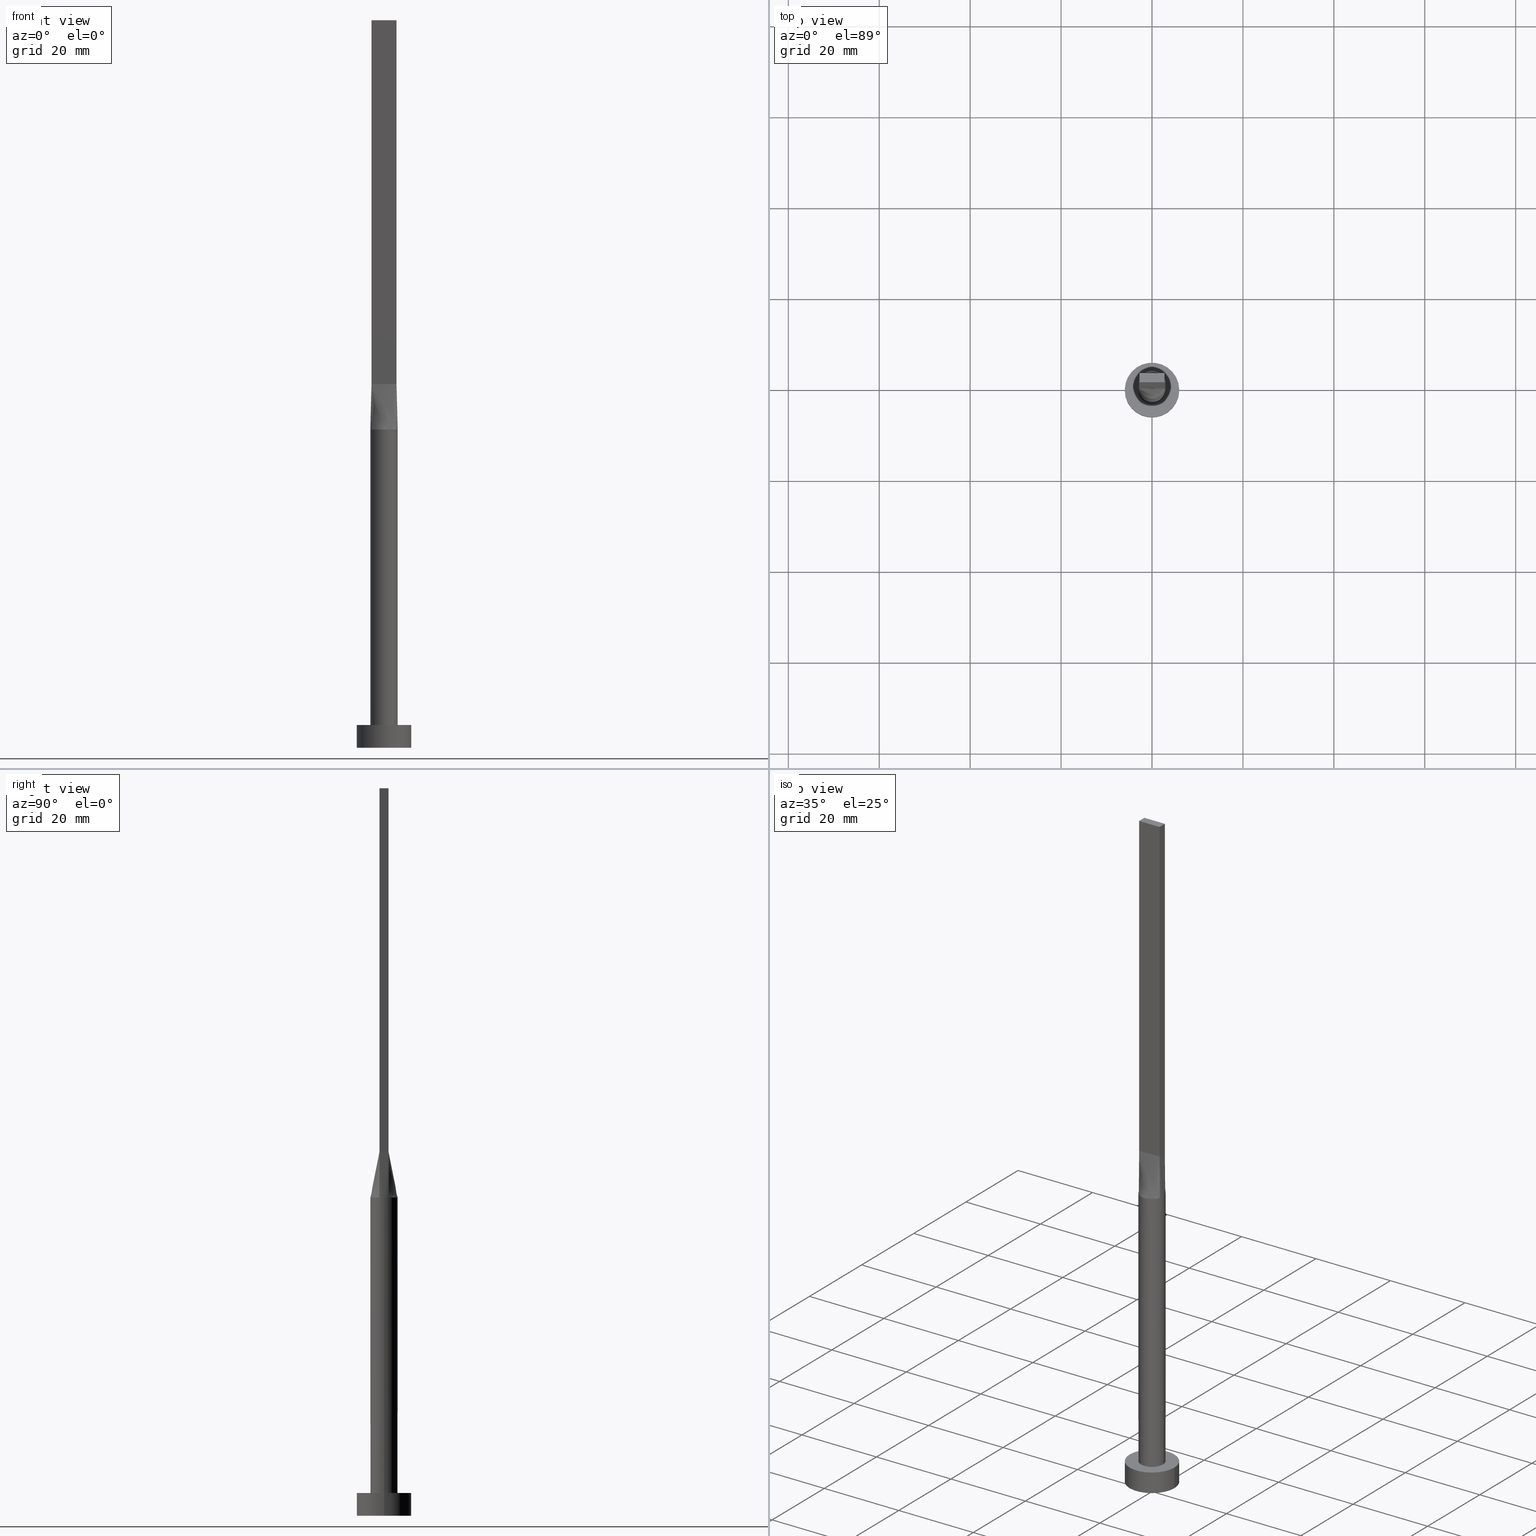
[diagram: canonical four-view strip — front | top / right | iso, engineering-drawing reading convention]
A machine part, canonical four-view strip (front | top / right | iso — engineering-drawing reading convention). The complete STEP part file that produces these views, byte-faithful:
ISO-10303-21;
HEADER;
FILE_DESCRIPTION (( 'STEP AP203' ),
    '1' );
FILE_NAME ('1744.STEP',
    '2023-02-13T10:48:44',
    ( '' ),
    ( '' ),
    'SwSTEP 2.0',
    'SolidWorks 2019',
    '' );
FILE_SCHEMA (( 'CONFIG_CONTROL_DESIGN' ));
ENDSEC;

DATA;
#1 = PLANE ( 'NONE',  #320 ) ;
#2 = EDGE_CURVE ( 'NONE', #350, #322, #468, .T. ) ;
#3 = CC_DESIGN_APPROVAL ( #532, ( #118 ) ) ;
#4 = CARTESIAN_POINT ( 'NONE',  ( -1.627925520694712747, 2.539128397820341831, 70.00000000000000000 ) ) ;
#5 = PERSON_AND_ORGANIZATION ( #560, #45 ) ;
#6 = EDGE_LOOP ( 'NONE', ( #13, #372, #408, #58, #325, #424 ) ) ;
#7 = CARTESIAN_POINT ( 'NONE',  ( 2.750000000000000000, -0.9999999999999997780, 160.0000000000000000 ) ) ;
#8 =( NAMED_UNIT ( * ) PLANE_ANGLE_UNIT ( ) SI_UNIT ( $, .RADIAN. ) );
#9 = VERTEX_POINT ( 'NONE', #536 ) ;
#10 = EDGE_CURVE ( 'NONE', #465, #300, #511, .T. ) ;
#11 = CARTESIAN_POINT ( 'NONE',  ( 1.338960936578149630, 2.706038443291637563, 70.00000000000000000 ) ) ;
#12 = CARTESIAN_POINT ( 'NONE',  ( 0.000000000000000000, 0.000000000000000000, 70.00000000000000000 ) ) ;
#13 = ORIENTED_EDGE ( 'NONE', *, *, #501, .F. ) ;
#14 = CARTESIAN_POINT ( 'NONE',  ( 0.9166666666666677399, 1.000000000000000000, 79.99999999999998579 ) ) ;
#15 = EDGE_LOOP ( 'NONE', ( #105, #198, #545, #31 ) ) ;
#16 = ORIENTED_EDGE ( 'NONE', *, *, #57, .F. ) ;
#17 = EDGE_CURVE ( 'NONE', #9, #181, #299, .T. ) ;
#18 = CARTESIAN_POINT ( 'NONE',  ( 3.000000000000000444, -0.3523499553598126721, 69.99999999999998579 ) ) ;
#19 = LINE ( 'NONE', #184, #312 ) ;
#20 = LINE ( 'NONE', #513, #576 ) ;
#21 = CARTESIAN_POINT ( 'NONE',  ( 2.749999999999999556, 0.3333333333333348136, 79.99999999999998579 ) ) ;
#22 = DIRECTION ( 'NONE',  ( -1.000000000000000000, 0.000000000000000000, 0.000000000000000000 ) ) ;
#23 = CARTESIAN_POINT ( 'NONE',  ( 6.000000000000000888, 7.347880794884120722E-16, 0.000000000000000000 ) ) ;
#24 = EDGE_CURVE ( 'NONE', #462, #72, #88, .T. ) ;
#25 = ORIENTED_EDGE ( 'NONE', *, *, #143, .F. ) ;
#26 = CARTESIAN_POINT ( 'NONE',  ( -2.749999999999999556, 0.6666666666666667407, 79.99999999999998579 ) ) ;
#27 = CARTESIAN_POINT ( 'NONE',  ( -6.000000000000000888, 0.000000000000000000, 5.000000000000000000 ) ) ;
#28 = DIRECTION ( 'NONE',  ( 1.000000000000000000, 0.000000000000000000, 0.000000000000000000 ) ) ;
#29 = CARTESIAN_POINT ( 'NONE',  ( 0.000000000000000000, 0.000000000000000000, 5.000000000000000000 ) ) ;
#30 = CARTESIAN_POINT ( 'NONE',  ( -1.604166666666666963, -0.9999999999999993339, 79.99999999999998579 ) ) ;
#31 = ORIENTED_EDGE ( 'NONE', *, *, #126, .T. ) ;
#32 = ADVANCED_FACE ( 'NONE', ( #259 ), #253, .T. ) ;
#33 = CARTESIAN_POINT ( 'NONE',  ( 0.000000000000000000, 0.000000000000000000, 5.000000000000000000 ) ) ;
#34 = PLANE ( 'NONE',  #264 ) ;
#35 = CARTESIAN_POINT ( 'NONE',  ( -2.625980160873452540, -1.476334031700885507, 70.00000000000000000 ) ) ;
#36 = DIRECTION ( 'NONE',  ( 0.000000000000000000, 0.000000000000000000, 1.000000000000000000 ) ) ;
#37 = DIRECTION ( 'NONE',  ( 1.000000000000000000, 0.000000000000000000, 0.000000000000000000 ) ) ;
#38 = AXIS2_PLACEMENT_3D ( 'NONE', #567, #383, #389 ) ;
#39 = CARTESIAN_POINT ( 'NONE',  ( 2.749999999999999556, 1.000000000000000000, 160.0000000000000000 ) ) ;
#40 = CARTESIAN_POINT ( 'NONE',  ( 2.625980160873452984, -1.476334031700886618, 70.00000000000001421 ) ) ;
#41 = CARTESIAN_POINT ( 'NONE',  ( 2.520833333333333037, 1.000000000000000000, 80.00000000000000000 ) ) ;
#42 = B_SPLINE_SURFACE_WITH_KNOTS ( 'NONE', 3, 1, ( 
 ( #119, #429 ),
 ( #201, #26 ),
 ( #233, #522 ),
 ( #329, #287 ),
 ( #377, #473 ),
 ( #384, #291 ) ),
 .UNSPECIFIED., .F., .F., .F.,
 ( 4, 2, 4 ),
 ( 2, 2 ),
 ( 0.000000000000000000, 0.5000000000000000000, 1.000000000000000000 ),
 ( 0.000000000000000000, 1.000000000000000000 ),
 .UNSPECIFIED. ) ;
#43 = CARTESIAN_POINT ( 'NONE',  ( 2.739088299662392867, 1.246032108968142538, 70.00000000000002842 ) ) ;
#44 = CIRCLE ( 'NONE', #346, 6.000000000000000888 ) ;
#45 = ORGANIZATION ( 'NEUR�EN�', 'NEUR�EN�', '' ) ;
#46 = CARTESIAN_POINT ( 'NONE',  ( -0.3502136323054376721, 2.999999999999999112, 70.00000000000001421 ) ) ;
#47 = CARTESIAN_POINT ( 'NONE',  ( 0.000000000000000000, 0.000000000000000000, 5.000000000000000000 ) ) ;
#48 = ADVANCED_FACE ( 'NONE', ( #484 ), #1, .F. ) ;
#49 = VERTEX_POINT ( 'NONE', #79 ) ;
#50 = ORIENTED_EDGE ( 'NONE', *, *, #57, .T. ) ;
#51 = AXIS2_PLACEMENT_3D ( 'NONE', #450, #220, #83 ) ;
#52 = ORIENTED_EDGE ( 'NONE', *, *, #428, .T. ) ;
#53 = CARTESIAN_POINT ( 'NONE',  ( 1.627925520694712080, 2.539128397820340943, 69.99999999999998579 ) ) ;
#54 = CARTESIAN_POINT ( 'NONE',  ( 2.819380270465311700, 1.025229189260113083, 70.00000000000000000 ) ) ;
#55 = ORIENTED_EDGE ( 'NONE', *, *, #195, .F. ) ;
#57 = EDGE_CURVE ( 'NONE', #322, #462, #249, .T. ) ;
#56 = CARTESIAN_POINT ( 'NONE',  ( 3.000000000000000444, 7.514166843208536743E-18, 70.00000000000000000 ) ) ;
#58 = ORIENTED_EDGE ( 'NONE', *, *, #385, .F. ) ;
#59 = CC_DESIGN_PERSON_AND_ORGANIZATION_ASSIGNMENT ( #339, #515, ( #164 ) ) ;
#60 = LOCAL_TIME ( 11, 48, 44.00000000000000000, #152 ) ;
#61 = FACE_OUTER_BOUND ( 'NONE', #97, .T. ) ;
#62 = ORIENTED_EDGE ( 'NONE', *, *, #483, .F. ) ;
#63 = CARTESIAN_POINT ( 'NONE',  ( -2.749999999999999556, 1.000000000000000000, 80.00000000000000000 ) ) ;
#64 = EDGE_CURVE ( 'NONE', #49, #181, #392, .T. ) ;
#65 = CARTESIAN_POINT ( 'NONE',  ( -0.6998073349918614294, -2.936959335800558346, 70.00000000000001421 ) ) ;
#66 = CLOSED_SHELL ( 'NONE', ( #32, #455, #370, #296, #131, #168, #571, #417, #537, #508, #411, #398, #316, #48, #563 ) ) ;
#67 = CARTESIAN_POINT ( 'NONE',  ( 0.000000000000000000, 0.000000000000000000, 70.00000000000000000 ) ) ;
#68 = DIRECTION ( 'NONE',  ( 7.885106708985487801E-17, 1.000000000000000000, -0.000000000000000000 ) ) ;
#69 = CARTESIAN_POINT ( 'NONE',  ( -2.739088299662392423, 1.246032108968142316, 70.00000000000000000 ) ) ;
#70 = B_SPLINE_CURVE_WITH_KNOTS ( 'NONE', 3,
 ( #406, #43, #496, #535, #360, #445, #489, #252, #441, #129, #297, #396, #4, #349, #538, #130, #298, #493 ),
 .UNSPECIFIED., .F., .F.,
 ( 4, 2, 2, 2, 2, 2, 2, 2, 4 ),
 ( 0.000000000000000000, 0.1249999999999998890, 0.2499999999999997780, 0.3749999999999997780, 0.4999999999999997780, 0.6249999999999997780, 0.7499999999999997780, 0.8749999999999998890, 1.000000000000000000 ),
 .UNSPECIFIED. ) ;
#71 = CARTESIAN_POINT ( 'NONE',  ( -2.819413526938078007, -1.025241406939941369, 70.00000000000000000 ) ) ;
#72 = VERTEX_POINT ( 'NONE', #369 ) ;
#73 = CARTESIAN_POINT ( 'NONE',  ( -2.115507543051069916, 2.149870311632977593, 69.99999999999998579 ) ) ;
#74 = CARTESIAN_POINT ( 'NONE',  ( 2.819380270465311700, 1.025229189260112639, 70.00000000000000000 ) ) ;
#75 = ORIENTED_EDGE ( 'NONE', *, *, #439, .F. ) ;
#76 = FACE_OUTER_BOUND ( 'NONE', #95, .T. ) ;
#77 = EDGE_CURVE ( 'NONE', #179, #318, #427, .T. ) ;
#78 = VECTOR ( 'NONE', #577, 1000.000000000000000 ) ;
#79 = CARTESIAN_POINT ( 'NONE',  ( -2.749999999999999556, 1.000000000000000000, 160.0000000000000000 ) ) ;
#80 = DIRECTION ( 'NONE',  ( -0.000000000000000000, -0.000000000000000000, -1.000000000000000000 ) ) ;
#81 = APPROVAL_PERSON_ORGANIZATION ( #416, #307, #186 ) ;
#82 = CC_DESIGN_PERSON_AND_ORGANIZATION_ASSIGNMENT ( #230, #557, ( #169 ) ) ;
#83 = DIRECTION ( 'NONE',  ( 1.000000000000000000, 0.000000000000000000, 0.000000000000000000 ) ) ;
#84 = CARTESIAN_POINT ( 'NONE',  ( 2.314486317179579977, 1.928337902455807384, 70.00000000000002842 ) ) ;
#85 = CYLINDRICAL_SURFACE ( 'NONE', #146, 6.000000000000000888 ) ;
#87 = LINE ( 'NONE', #257, #116 ) ;
#86 = SHAPE_DEFINITION_REPRESENTATION ( #163, #580 ) ;
#88 = LINE ( 'NONE', #390, #458 ) ;
#89 = EDGE_CURVE ( 'NONE', #313, #453, #481, .T. ) ;
#90 = PERSON_AND_ORGANIZATION_ROLE ( 'creator' ) ;
#91 = DIRECTION ( 'NONE',  ( 1.000000000000000000, 0.000000000000000000, 0.000000000000000000 ) ) ;
#92 = EDGE_LOOP ( 'NONE', ( #521, #405, #271, #50 ) ) ;
#93 = APPROVAL_DATE_TIME ( #265, #293 ) ;
#94 = CARTESIAN_POINT ( 'NONE',  ( 1.833333333333333481, 1.000000000000000000, 79.99999999999998579 ) ) ;
#95 = EDGE_LOOP ( 'NONE', ( #306, #25, #524, #279 ) ) ;
#96 = VECTOR ( 'NONE', #22, 1000.000000000000000 ) ;
#97 = EDGE_LOOP ( 'NONE', ( #568, #141, #529, #382, #276 ) ) ;
#98 = ORIENTED_EDGE ( 'NONE', *, *, #149, .T. ) ;
#99 = CARTESIAN_POINT ( 'NONE',  ( -6.000000000000000888, 0.000000000000000000, 0.000000000000000000 ) ) ;
#100 = MECHANICAL_CONTEXT ( 'NONE', #185, 'mechanical' ) ;
#101 = CARTESIAN_POINT ( 'NONE',  ( 2.936168591633194769, -0.7040613060484341990, 70.00000000000001421 ) ) ;
#102 = ORIENTED_EDGE ( 'NONE', *, *, #544, .F. ) ;
#103 = CARTESIAN_POINT ( 'NONE',  ( -2.749999999999999556, 1.000000000000000000, 80.00000000000000000 ) ) ;
#104 = CARTESIAN_POINT ( 'NONE',  ( 3.000000000000000444, 3.673940397442060361E-16, 5.000000000000000000 ) ) ;
#105 = ORIENTED_EDGE ( 'NONE', *, *, #544, .T. ) ;
#106 = DIRECTION ( 'NONE',  ( -0.000000000000000000, -0.000000000000000000, -1.000000000000000000 ) ) ;
#107 = EDGE_CURVE ( 'NONE', #300, #72, #566, .T. ) ;
#108 = LINE ( 'NONE', #278, #466 ) ;
#109 = LOCAL_TIME ( 11, 48, 44.00000000000000000, #267 ) ;
#110 = ORIENTED_EDGE ( 'NONE', *, *, #255, .T. ) ;
#111 = DIRECTION ( 'NONE',  ( -0.000000000000000000, -0.000000000000000000, -1.000000000000000000 ) ) ;
#112 = ORIENTED_EDGE ( 'NONE', *, *, #10, .F. ) ;
#113 = DATE_AND_TIME ( #194, #60 ) ;
#114 = ORIENTED_EDGE ( 'NONE', *, *, #195, .T. ) ;
#115 = APPROVAL_STATUS ( 'not_yet_approved' ) ;
#116 = VECTOR ( 'NONE', #217, 1000.000000000000000 ) ;
#117 = ORIENTED_EDGE ( 'NONE', *, *, #290, .F. ) ;
#118 = PRODUCT_DEFINITION_FORMATION_WITH_SPECIFIED_SOURCE ( 'LIBOVOLN�', '', #169, .NOT_KNOWN. ) ;
#119 = CARTESIAN_POINT ( 'NONE',  ( -2.819380270465311700, 1.025229189260112861, 70.00000000000000000 ) ) ;
#120 = CARTESIAN_POINT ( 'NONE',  ( -0.2291666666666671015, -0.9999999999999993339, 80.00000000000000000 ) ) ;
#121 = CARTESIAN_POINT ( 'NONE',  ( 2.819430526142641558, -1.025247683279450817, 70.00000000000000000 ) ) ;
#122 = VECTOR ( 'NONE', #334, 1000.000000000000114 ) ;
#123 =( NAMED_UNIT ( * ) SI_UNIT ( $, .STERADIAN. ) SOLID_ANGLE_UNIT ( ) );
#124 = DIRECTION ( 'NONE',  ( 1.000000000000000000, 0.000000000000000000, 0.000000000000000000 ) ) ;
#125 = MANIFOLD_SOLID_BREP ( 'P�idat vysunut�m5', #66 ) ;
#126 = EDGE_CURVE ( 'NONE', #272, #72, #423, .T. ) ;
#127 = AXIS2_PLACEMENT_3D ( 'NONE', #67, #285, #238 ) ;
#128 = CALENDAR_DATE ( 2023, 13, 2 ) ;
#129 = CARTESIAN_POINT ( 'NONE',  ( -0.3502136323054376721, 2.999999999999999112, 70.00000000000001421 ) ) ;
#130 = CARTESIAN_POINT ( 'NONE',  ( -2.625980160873452096, 1.476334031700886396, 69.99999999999998579 ) ) ;
#131 = ADVANCED_FACE ( 'NONE', ( #475 ), #34, .F. ) ;
#132 = ORIENTED_EDGE ( 'NONE', *, *, #17, .T. ) ;
#133 = CARTESIAN_POINT ( 'NONE',  ( 1.833333333333333037, -0.9999999999999995559, 79.99999999999998579 ) ) ;
#135 = CARTESIAN_POINT ( 'NONE',  ( 6.000000000000000888, 7.347880794884120722E-16, 5.000000000000000000 ) ) ;
#134 = COORDINATED_UNIVERSAL_TIME_OFFSET ( 1, 0, .AHEAD. ) ;
#136 = CARTESIAN_POINT ( 'NONE',  ( 2.750000000000000000, -0.9999999999999997780, 80.00000000000000000 ) ) ;
#137 = AXIS2_PLACEMENT_3D ( 'NONE', #12, #352, #175 ) ;
#138 = VERTEX_POINT ( 'NONE', #71 ) ;
#139 = DIRECTION ( 'NONE',  ( -2.168404344971009854E-16, -1.000000000000000000, 0.000000000000000000 ) ) ;
#140 = ORIENTED_EDGE ( 'NONE', *, *, #2, .T. ) ;
#141 = ORIENTED_EDGE ( 'NONE', *, *, #10, .T. ) ;
#142 = CARTESIAN_POINT ( 'NONE',  ( 3.000000000000000444, 3.673940397442060361E-16, 70.00000000000000000 ) ) ;
#143 = EDGE_CURVE ( 'NONE', #350, #507, #20, .T. ) ;
#144 = DIRECTION ( 'NONE',  ( -1.000000000000000000, 7.885106708985487801E-17, 0.000000000000000000 ) ) ;
#145 = VERTEX_POINT ( 'NONE', #23 ) ;
#146 = AXIS2_PLACEMENT_3D ( 'NONE', #442, #80, #446 ) ;
#147 = DIRECTION ( 'NONE',  ( 0.000000000000000000, -1.000000000000000000, 0.000000000000000000 ) ) ;
#148 = ORIENTED_EDGE ( 'NONE', *, *, #2, .F. ) ;
#149 = EDGE_CURVE ( 'NONE', #49, #350, #108, .T. ) ;
#150 = LINE ( 'NONE', #321, #166 ) ;
#151 = CARTESIAN_POINT ( 'NONE',  ( 2.784690135232655628, 1.012614594630056430, 75.00000000000001421 ) ) ;
#152 = COORDINATED_UNIVERSAL_TIME_OFFSET ( 1, 0, .AHEAD. ) ;
#153 = CIRCLE ( 'NONE', #137, 3.000000000000000444 ) ;
#154 = FACE_OUTER_BOUND ( 'NONE', #6, .T. ) ;
#155 = CIRCLE ( 'NONE', #303, 6.000000000000000888 ) ;
#156 = DIRECTION ( 'NONE',  ( 0.000000000000000000, -0.000000000000000000, -1.000000000000000000 ) ) ;
#157 = CARTESIAN_POINT ( 'NONE',  ( -2.750000000000000000, -0.9999999999999993339, 80.00000000000000000 ) ) ;
#158 = APPROVAL_ROLE ( '' ) ;
#159 = FACE_OUTER_BOUND ( 'NONE', #477, .T. ) ;
#160 = CARTESIAN_POINT ( 'NONE',  ( 0.3502136323054372835, -3.000000000000000444, 70.00000000000001421 ) ) ;
#161 = ORIENTED_EDGE ( 'NONE', *, *, #77, .F. ) ;
#162 = DIRECTION ( 'NONE',  ( -1.000000000000000000, 0.000000000000000000, 0.000000000000000000 ) ) ;
#163 = PRODUCT_DEFINITION_SHAPE ( 'NONE', 'NONE',  #164 ) ;
#164 = PRODUCT_DEFINITION ( 'NEZN�M�', '', #118, #553 ) ;
#165 = EDGE_LOOP ( 'NONE', ( #173, #132, #102, #222 ) ) ;
#166 = VECTOR ( 'NONE', #106, 1000.000000000000000 ) ;
#167 = CARTESIAN_POINT ( 'NONE',  ( -2.739088299662391979, -1.246032108968140983, 70.00000000000001421 ) ) ;
#168 = ADVANCED_FACE ( 'NONE', ( #154 ), #379, .T. ) ;
#169 = PRODUCT ( '1744', '1744', '', ( #100 ) ) ;
#170 = AXIS2_PLACEMENT_3D ( 'NONE', #376, #548, #283 ) ;
#171 = CARTESIAN_POINT ( 'NONE',  ( -2.749999999999999556, 1.000000000000000000, 160.0000000000000000 ) ) ;
#172 = CARTESIAN_POINT ( 'NONE',  ( 2.520833333333333037, -0.9999999999999995559, 79.99999999999998579 ) ) ;
#173 = ORIENTED_EDGE ( 'NONE', *, *, #221, .T. ) ;
#174 = CARTESIAN_POINT ( 'NONE',  ( 2.750000000000000000, -0.9999999999999997780, 80.00000000000000000 ) ) ;
#175 = DIRECTION ( 'NONE',  ( 1.000000000000000000, 0.000000000000000000, 0.000000000000000000 ) ) ;
#176 = CARTESIAN_POINT ( 'NONE',  ( 0.2291666666666671015, 1.000000000000000000, 79.99999999999998579 ) ) ;
#177 = CC_DESIGN_APPROVAL ( #307, ( #164 ) ) ;
#178 = ORIENTED_EDGE ( 'NONE', *, *, #501, .T. ) ;
#179 = VERTEX_POINT ( 'NONE', #27 ) ;
#180 = EDGE_CURVE ( 'NONE', #9, #456, #153, .T. ) ;
#181 = VERTEX_POINT ( 'NONE', #347 ) ;
#182 = CARTESIAN_POINT ( 'NONE',  ( 2.750000000000000000, -0.3333333333333318160, 79.99999999999998579 ) ) ;
#183 = EDGE_LOOP ( 'NONE', ( #480, #519, #304, #500 ) ) ;
#184 = CARTESIAN_POINT ( 'NONE',  ( 2.784690135232656072, -1.012614594630056208, 75.00000000000001421 ) ) ;
#185 = APPLICATION_CONTEXT ( 'configuration controlled 3d designs of mechanical parts and assemblies' ) ;
#186 = APPROVAL_ROLE ( '' ) ;
#187 = CARTESIAN_POINT ( 'NONE',  ( 2.936168591633195657, 0.7040613060484338659, 70.00000000000000000 ) ) ;
#188 = DATE_AND_TIME ( #437, #192 ) ;
#189 = AXIS2_PLACEMENT_3D ( 'NONE', #342, #351, #124 ) ;
#190 = AXIS2_PLACEMENT_3D ( 'NONE', #212, #447, #341 ) ;
#191 = ORIENTED_EDGE ( 'NONE', *, *, #89, .T. ) ;
#192 = LOCAL_TIME ( 11, 48, 44.00000000000000000, #338 ) ;
#193 = FACE_OUTER_BOUND ( 'NONE', #514, .T. ) ;
#194 = CALENDAR_DATE ( 2023, 13, 2 ) ;
#195 = EDGE_CURVE ( 'NONE', #432, #145, #395, .T. ) ;
#196 = DIRECTION ( 'NONE',  ( 1.000000000000000000, 0.000000000000000000, 0.000000000000000000 ) ) ;
#197 = CARTESIAN_POINT ( 'NONE',  ( -1.833333333333333481, -0.9999999999999993339, 79.99999999999998579 ) ) ;
#198 = ORIENTED_EDGE ( 'NONE', *, *, #64, .F. ) ;
#199 = PERSON_AND_ORGANIZATION ( #560, #45 ) ;
#200 = FACE_OUTER_BOUND ( 'NONE', #543, .T. ) ;
#201 = CARTESIAN_POINT ( 'NONE',  ( -2.936168591633194769, 0.7040613060484341990, 70.00000000000001421 ) ) ;
#202 = CARTESIAN_POINT ( 'NONE',  ( -2.115507543051069472, -2.149870311632975373, 70.00000000000000000 ) ) ;
#203 = B_SPLINE_SURFACE_WITH_KNOTS ( 'NONE', 3, 1, ( 
 ( #242, #157 ),
 ( #167, #467 ),
 ( #35, #464 ),
 ( #476, #197 ),
 ( #202, #30 ),
 ( #387, #336 ),
 ( #380, #564 ),
 ( #65, #207 ),
 ( #575, #120 ),
 ( #160, #340 ),
 ( #479, #328 ),
 ( #520, #246 ),
 ( #356, #348 ),
 ( #353, #258 ),
 ( #491, #133 ),
 ( #40, #539 ),
 ( #494, #172 ),
 ( #497, #136 ) ),
 .UNSPECIFIED., .F., .F., .F.,
 ( 4, 2, 2, 2, 2, 2, 2, 2, 4 ),
 ( 2, 2 ),
 ( 0.000000000000000000, 0.1250000000000000000, 0.2500000000000000000, 0.3750000000000000000, 0.5000000000000000000, 0.6250000000000000000, 0.7500000000000000000, 0.8750000000000000000, 1.000000000000000000 ),
 ( 0.000000000000000000, 1.000000000000000000 ),
 .UNSPECIFIED. ) ;
#204 = ORIENTED_EDGE ( 'NONE', *, *, #385, .T. ) ;
#205 = DIRECTION ( 'NONE',  ( 1.000000000000000000, -2.168404344971010101E-16, 0.000000000000000000 ) ) ;
#206 = CARTESIAN_POINT ( 'NONE',  ( 6.000000000000000888, 7.347880794884120722E-16, 5.000000000000000000 ) ) ;
#207 = CARTESIAN_POINT ( 'NONE',  ( -0.4583333333333337589, -0.9999999999999993339, 79.99999999999998579 ) ) ;
#208 = AXIS2_PLACEMENT_3D ( 'NONE', #47, #391, #487 ) ;
#209 = CARTESIAN_POINT ( 'NONE',  ( -2.784690135232655628, 1.012614594630056430, 75.00000000000001421 ) ) ;
#210 = LINE ( 'NONE', #573, #277 ) ;
#211 = DIRECTION ( 'NONE',  ( -0.000000000000000000, -0.000000000000000000, -1.000000000000000000 ) ) ;
#212 = CARTESIAN_POINT ( 'NONE',  ( 0.000000000000000000, 0.000000000000000000, 70.00000000000000000 ) ) ;
#213 = B_SPLINE_SURFACE_WITH_KNOTS ( 'NONE', 3, 1, ( 
 ( #232, #509 ),
 ( #101, #227 ),
 ( #18, #182 ),
 ( #419, #21 ),
 ( #187, #555 ),
 ( #74, #386 ) ),
 .UNSPECIFIED., .F., .F., .F.,
 ( 4, 2, 4 ),
 ( 2, 2 ),
 ( 0.000000000000000000, 0.5000000000000000000, 1.000000000000000000 ),
 ( 0.000000000000000000, 1.000000000000000000 ),
 .UNSPECIFIED. ) ;
#214 = PERSON_AND_ORGANIZATION ( #560, #45 ) ;
#215 = VECTOR ( 'NONE', #431, 1000.000000000000000 ) ;
#216 = EDGE_CURVE ( 'NONE', #138, #359, #486, .T. ) ;
#217 = DIRECTION ( 'NONE',  ( 1.000000000000000000, -7.885106708985487801E-17, 0.000000000000000000 ) ) ;
#218 = DIRECTION ( 'NONE',  ( -2.168404344971008868E-16, 1.000000000000000000, -0.000000000000000000 ) ) ;
#219 = DATE_AND_TIME ( #128, #438 ) ;
#220 = DIRECTION ( 'NONE',  ( 0.000000000000000000, 0.000000000000000000, 1.000000000000000000 ) ) ;
#221 = EDGE_CURVE ( 'NONE', #300, #9, #70, .T. ) ;
#222 = ORIENTED_EDGE ( 'NONE', *, *, #107, .F. ) ;
#223 = CARTESIAN_POINT ( 'NONE',  ( -2.750000000000000000, -0.9999999999999993339, 80.00000000000000000 ) ) ;
#224 = CARTESIAN_POINT ( 'NONE',  ( 1.604166666666667185, 1.000000000000000000, 79.99999999999998579 ) ) ;
#225 = DIRECTION ( 'NONE',  ( 2.168404344971010101E-16, 1.000000000000000000, 0.000000000000000000 ) ) ;
#226 = EDGE_CURVE ( 'NONE', #507, #462, #87, .T. ) ;
#227 = CARTESIAN_POINT ( 'NONE',  ( 2.750000000000000000, -0.6666666666666656305, 79.99999999999998579 ) ) ;
#228 = CARTESIAN_POINT ( 'NONE',  ( 2.749999999999999556, 1.000000000000000000, 80.00000000000000000 ) ) ;
#229 = CARTESIAN_POINT ( 'NONE',  ( -2.750000000000000000, -0.9999999999999993339, 160.0000000000000000 ) ) ;
#230 = PERSON_AND_ORGANIZATION ( #560, #45 ) ;
#231 = DIRECTION ( 'NONE',  ( -0.000000000000000000, -0.000000000000000000, -1.000000000000000000 ) ) ;
#232 = CARTESIAN_POINT ( 'NONE',  ( 2.819380270465311700, -1.025229189260113083, 70.00000000000000000 ) ) ;
#233 = CARTESIAN_POINT ( 'NONE',  ( -3.000000000000000444, 0.3523499553598127276, 69.99999999999998579 ) ) ;
#234 = CARTESIAN_POINT ( 'NONE',  ( -6.000000000000000888, 0.000000000000000000, 5.000000000000000000 ) ) ;
#235 = ORIENTED_EDGE ( 'NONE', *, *, #180, .T. ) ;
#236 = VECTOR ( 'NONE', #211, 1000.000000000000000 ) ;
#237 = CARTESIAN_POINT ( 'NONE',  ( -1.627925520694712747, 2.539128397820341831, 70.00000000000000000 ) ) ;
#238 = DIRECTION ( 'NONE',  ( -1.000000000000000000, 0.000000000000000000, 0.000000000000000000 ) ) ;
#239 = CARTESIAN_POINT ( 'NONE',  ( -2.750000000000000000, -0.9999999999999993339, 160.0000000000000000 ) ) ;
#240 = AXIS2_PLACEMENT_3D ( 'NONE', #229, #68, #144 ) ;
#241 = VECTOR ( 'NONE', #139, 1000.000000000000000 ) ;
#242 = CARTESIAN_POINT ( 'NONE',  ( -2.819380270465311700, -1.025229189260111973, 70.00000000000000000 ) ) ;
#243 = ORIENTED_EDGE ( 'NONE', *, *, #460, .F. ) ;
#244 = PLANE ( 'NONE',  #574 ) ;
#245 = CARTESIAN_POINT ( 'NONE',  ( 0.000000000000000000, 0.000000000000000000, 5.000000000000000000 ) ) ;
#246 = CARTESIAN_POINT ( 'NONE',  ( 0.9166666666666661856, -0.9999999999999995559, 79.99999999999998579 ) ) ;
#247 = CARTESIAN_POINT ( 'NONE',  ( -2.750000000000000000, -0.9999999999999993339, 160.0000000000000000 ) ) ;
#248 = CC_DESIGN_SECURITY_CLASSIFICATION ( #426, ( #118 ) ) ;
#249 = LINE ( 'NONE', #440, #236 ) ;
#250 = PERSON_AND_ORGANIZATION ( #560, #45 ) ;
#251 = DIRECTION ( 'NONE',  ( 1.000000000000000000, 0.000000000000000000, 0.000000000000000000 ) ) ;
#252 = CARTESIAN_POINT ( 'NONE',  ( 0.6998073349918605413, 2.936959335800557014, 69.99999999999997158 ) ) ;
#253 = CYLINDRICAL_SURFACE ( 'NONE', #190, 3.000000000000000444 ) ;
#254 = DIRECTION ( 'NONE',  ( 1.000000000000000000, -7.885106708985487801E-17, 0.000000000000000000 ) ) ;
#255 = EDGE_CURVE ( 'NONE', #322, #272, #400, .T. ) ;
#256 = DIRECTION ( 'NONE',  ( 0.000000000000000000, 0.000000000000000000, 1.000000000000000000 ) ) ;
#257 = CARTESIAN_POINT ( 'NONE',  ( -2.750000000000000000, -0.9999999999999993339, 80.00000000000000000 ) ) ;
#258 = CARTESIAN_POINT ( 'NONE',  ( 1.604166666666666297, -0.9999999999999995559, 79.99999999999998579 ) ) ;
#259 = FACE_OUTER_BOUND ( 'NONE', #268, .T. ) ;
#260 = APPROVAL_STATUS ( 'not_yet_approved' ) ;
#261 =( LENGTH_UNIT ( ) NAMED_UNIT ( * ) SI_UNIT ( .MILLI., .METRE. ) );
#262 = COORDINATED_UNIVERSAL_TIME_OFFSET ( 1, 0, .AHEAD. ) ;
#263 = EDGE_CURVE ( 'NONE', #432, #179, #44, .T. ) ;
#264 = AXIS2_PLACEMENT_3D ( 'NONE', #528, #274, #418 ) ;
#265 = DATE_AND_TIME ( #541, #516 ) ;
#266 = EDGE_LOOP ( 'NONE', ( #75, #310 ) ) ;
#267 = COORDINATED_UNIVERSAL_TIME_OFFSET ( 1, 0, .AHEAD. ) ;
#268 = EDGE_LOOP ( 'NONE', ( #112, #178, #191, #517, #510, #471 ) ) ;
#269 = ORIENTED_EDGE ( 'NONE', *, *, #263, .T. ) ;
#270 = APPROVAL_STATUS ( 'not_yet_approved' ) ;
#271 = ORIENTED_EDGE ( 'NONE', *, *, #255, .F. ) ;
#272 = VERTEX_POINT ( 'NONE', #39 ) ;
#273 = FACE_OUTER_BOUND ( 'NONE', #552, .T. ) ;
#274 = DIRECTION ( 'NONE',  ( 0.000000000000000000, 0.000000000000000000, 1.000000000000000000 ) ) ;
#275 = CARTESIAN_POINT ( 'NONE',  ( 2.749999999999999556, 1.000000000000000000, 160.0000000000000000 ) ) ;
#276 = ORIENTED_EDGE ( 'NONE', *, *, #323, .F. ) ;
#277 = VECTOR ( 'NONE', #531, 1000.000000000000114 ) ;
#278 = CARTESIAN_POINT ( 'NONE',  ( -2.749999999999999556, 1.000000000000000000, 160.0000000000000000 ) ) ;
#279 = ORIENTED_EDGE ( 'NONE', *, *, #64, .T. ) ;
#280 = EDGE_CURVE ( 'NONE', #272, #49, #330, .T. ) ;
#281 = PLANE ( 'NONE',  #38 ) ;
#282 = EDGE_LOOP ( 'NONE', ( #243, #117 ) ) ;
#283 = DIRECTION ( 'NONE',  ( 1.000000000000000000, 0.000000000000000000, -0.000000000000000000 ) ) ;
#284 = PRODUCT_RELATED_PRODUCT_CATEGORY ( 'detail', '', ( #169 ) ) ;
#285 = DIRECTION ( 'NONE',  ( -0.000000000000000000, -0.000000000000000000, -1.000000000000000000 ) ) ;
#286 = ORIENTED_EDGE ( 'NONE', *, *, #143, .T. ) ;
#287 = CARTESIAN_POINT ( 'NONE',  ( -2.750000000000000000, -0.3333333333333328152, 79.99999999999998579 ) ) ;
#288 = CARTESIAN_POINT ( 'NONE',  ( 2.749999999999999556, 1.000000000000000000, 160.0000000000000000 ) ) ;
#289 = AXIS2_PLACEMENT_3D ( 'NONE', #581, #256, #534 ) ;
#290 = EDGE_CURVE ( 'NONE', #145, #318, #365, .T. ) ;
#291 = CARTESIAN_POINT ( 'NONE',  ( -2.750000000000000000, -0.9999999999999991118, 80.00000000000000000 ) ) ;
#292 = DATE_TIME_ROLE ( 'creation_date' ) ;
#293 = APPROVAL ( #260, 'NEUR�EN�' ) ;
#294 = DIRECTION ( 'NONE',  ( 2.168404344971008868E-16, -1.000000000000000000, 0.000000000000000000 ) ) ;
#295 = APPROVAL_DATE_TIME ( #113, #532 ) ;
#296 = ADVANCED_FACE ( 'NONE', ( #551, #273 ), #366, .T. ) ;
#297 = CARTESIAN_POINT ( 'NONE',  ( -0.6998073349918608743, 2.936959335800557014, 70.00000000000000000 ) ) ;
#298 = CARTESIAN_POINT ( 'NONE',  ( -2.739088299662392423, 1.246032108968142316, 70.00000000000000000 ) ) ;
#299 = LINE ( 'NONE', #209, #308 ) ;
#300 = VERTEX_POINT ( 'NONE', #562 ) ;
#301 = CARTESIAN_POINT ( 'NONE',  ( 2.115507543051069916, 2.149870311632976705, 70.00000000000001421 ) ) ;
#302 = PERSON_AND_ORGANIZATION ( #560, #45 ) ;
#303 = AXIS2_PLACEMENT_3D ( 'NONE', #245, #436, #37 ) ;
#304 = ORIENTED_EDGE ( 'NONE', *, *, #226, .F. ) ;
#305 = CARTESIAN_POINT ( 'NONE',  ( -1.338960936578149408, 2.706038443291637119, 69.99999999999998579 ) ) ;
#306 = ORIENTED_EDGE ( 'NONE', *, *, #483, .T. ) ;
#307 = APPROVAL ( #270, 'NEUR�EN�' ) ;
#308 = VECTOR ( 'NONE', #495, 1000.000000000000114 ) ;
#309 = DIRECTION ( 'NONE',  ( 0.000000000000000000, 0.000000000000000000, 1.000000000000000000 ) ) ;
#310 = ORIENTED_EDGE ( 'NONE', *, *, #89, .F. ) ;
#311 = FACE_OUTER_BOUND ( 'NONE', #165, .T. ) ;
#312 = VECTOR ( 'NONE', #368, 1000.000000000000114 ) ;
#313 = VERTEX_POINT ( 'NONE', #104 ) ;
#314 = UNCERTAINTY_MEASURE_WITH_UNIT (LENGTH_MEASURE( 1.000000000000000082E-05 ), #261, 'distance_accuracy_value', 'NONE');
#315 = VECTOR ( 'NONE', #459, 1000.000000000000000 ) ;
#316 = ADVANCED_FACE ( 'NONE', ( #159 ), #326, .F. ) ;
#317 = EDGE_LOOP ( 'NONE', ( #337, #114, #363, #161 ) ) ;
#318 = VERTEX_POINT ( 'NONE', #99 ) ;
#319 = CC_DESIGN_PERSON_AND_ORGANIZATION_ASSIGNMENT ( #302, #354, ( #426 ) ) ;
#320 = AXIS2_PLACEMENT_3D ( 'NONE', #401, #498, #294 ) ;
#321 = CARTESIAN_POINT ( 'NONE',  ( -3.000000000000000444, 0.000000000000000000, 70.00000000000000000 ) ) ;
#322 = VERTEX_POINT ( 'NONE', #415 ) ;
#323 = EDGE_CURVE ( 'NONE', #359, #462, #19, .T. ) ;
#324 = LINE ( 'NONE', #559, #215 ) ;
#325 = ORIENTED_EDGE ( 'NONE', *, *, #345, .T. ) ;
#326 = PLANE ( 'NONE',  #240 ) ;
#327 = APPROVAL_DATE_TIME ( #409, #307 ) ;
#328 = CARTESIAN_POINT ( 'NONE',  ( 0.4583333333333329263, -0.9999999999999995559, 79.99999999999998579 ) ) ;
#329 = CARTESIAN_POINT ( 'NONE',  ( -3.000000000000000444, -0.3523499553598117839, 69.99999999999998579 ) ) ;
#330 = LINE ( 'NONE', #523, #96 ) ;
#331 = DIRECTION ( 'NONE',  ( 0.000000000000000000, 0.000000000000000000, 1.000000000000000000 ) ) ;
#332 = CYLINDRICAL_SURFACE ( 'NONE', #561, 6.000000000000000888 ) ;
#333 = CARTESIAN_POINT ( 'NONE',  ( -2.291666666666665630, 1.000000000000000000, 79.99999999999998579 ) ) ;
#334 = DIRECTION ( 'NONE',  ( -0.006937837988376413349, -0.002522850177591328454, 0.9999727504442450510 ) ) ;
#335 = AXIS2_PLACEMENT_3D ( 'NONE', #344, #490, #533 ) ;
#336 = CARTESIAN_POINT ( 'NONE',  ( -1.145833333333333703, -0.9999999999999993339, 79.99999999999998579 ) ) ;
#337 = ORIENTED_EDGE ( 'NONE', *, *, #263, .F. ) ;
#338 = COORDINATED_UNIVERSAL_TIME_OFFSET ( 1, 0, .AHEAD. ) ;
#339 = PERSON_AND_ORGANIZATION ( #560, #45 ) ;
#340 = CARTESIAN_POINT ( 'NONE',  ( 0.2291666666666662688, -0.9999999999999995559, 79.99999999999998579 ) ) ;
#341 = DIRECTION ( 'NONE',  ( -1.000000000000000000, 0.000000000000000000, 0.000000000000000000 ) ) ;
#342 = CARTESIAN_POINT ( 'NONE',  ( 0.000000000000000000, 0.000000000000000000, 70.00000000000000000 ) ) ;
#343 = SECURITY_CLASSIFICATION_LEVEL ( 'unclassified' ) ;
#344 = CARTESIAN_POINT ( 'NONE',  ( 0.000000000000000000, 0.000000000000000000, 70.00000000000000000 ) ) ;
#345 = EDGE_CURVE ( 'NONE', #456, #453, #150, .T. ) ;
#346 = AXIS2_PLACEMENT_3D ( 'NONE', #33, #527, #435 ) ;
#347 = CARTESIAN_POINT ( 'NONE',  ( -2.749999999999999556, 1.000000000000000000, 80.00000000000000000 ) ) ;
#348 = CARTESIAN_POINT ( 'NONE',  ( 1.145833333333332815, -0.9999999999999995559, 79.99999999999998579 ) ) ;
#349 = CARTESIAN_POINT ( 'NONE',  ( -2.115507543051069916, 2.149870311632977593, 69.99999999999998579 ) ) ;
#350 = VERTEX_POINT ( 'NONE', #247 ) ;
#351 = DIRECTION ( 'NONE',  ( 0.000000000000000000, 0.000000000000000000, 1.000000000000000000 ) ) ;
#352 = DIRECTION ( 'NONE',  ( 0.000000000000000000, 0.000000000000000000, 1.000000000000000000 ) ) ;
#353 = CARTESIAN_POINT ( 'NONE',  ( 2.115507543051068140, -2.149870311632976705, 69.99999999999998579 ) ) ;
#354 = PERSON_AND_ORGANIZATION_ROLE ( 'classification_officer' ) ;
#355 = ORIENTED_EDGE ( 'NONE', *, *, #280, .T. ) ;
#356 = CARTESIAN_POINT ( 'NONE',  ( 1.627925520694712080, -2.539128397820341831, 70.00000000000001421 ) ) ;
#357 = CARTESIAN_POINT ( 'NONE',  ( -0.4583333333333324267, 1.000000000000000000, 79.99999999999998579 ) ) ;
#358 =( GEOMETRIC_REPRESENTATION_CONTEXT ( 3 ) GLOBAL_UNCERTAINTY_ASSIGNED_CONTEXT ( ( #314 ) ) GLOBAL_UNIT_ASSIGNED_CONTEXT ( ( #261, #8, #123 ) ) REPRESENTATION_CONTEXT ( 'NONE', 'WORKASPACE' ) );
#359 = VERTEX_POINT ( 'NONE', #121 ) ;
#360 = CARTESIAN_POINT ( 'NONE',  ( 2.115507543051069916, 2.149870311632976705, 70.00000000000001421 ) ) ;
#361 = CARTESIAN_POINT ( 'NONE',  ( 0.6998073349918605413, 2.936959335800557014, 69.99999999999997158 ) ) ;
#362 = CARTESIAN_POINT ( 'NONE',  ( 0.000000000000000000, 0.000000000000000000, 0.000000000000000000 ) ) ;
#363 = ORIENTED_EDGE ( 'NONE', *, *, #290, .T. ) ;
#364 = EDGE_CURVE ( 'NONE', #507, #138, #210, .T. ) ;
#365 = CIRCLE ( 'NONE', #425, 6.000000000000000888 ) ;
#366 = PLANE ( 'NONE',  #170 ) ;
#367 = AXIS2_PLACEMENT_3D ( 'NONE', #362, #309, #91 ) ;
#368 = DIRECTION ( 'NONE',  ( -0.006937837988376369981, 0.002522850177591328454, 0.9999727504442450510 ) ) ;
#369 = CARTESIAN_POINT ( 'NONE',  ( 2.749999999999999556, 1.000000000000000000, 80.00000000000000000 ) ) ;
#370 = ADVANCED_FACE ( 'NONE', ( #200 ), #332, .T. ) ;
#371 = FACE_OUTER_BOUND ( 'NONE', #15, .T. ) ;
#372 = ORIENTED_EDGE ( 'NONE', *, *, #393, .F. ) ;
#373 = CARTESIAN_POINT ( 'NONE',  ( -2.819380270465311700, 1.025229189260112861, 70.00000000000000000 ) ) ;
#374 = VECTOR ( 'NONE', #430, 1000.000000000000000 ) ;
#375 = ORIENTED_EDGE ( 'NONE', *, *, #77, .T. ) ;
#376 = CARTESIAN_POINT ( 'NONE',  ( 0.000000000000000000, 0.000000000000000000, 5.000000000000000000 ) ) ;
#377 = CARTESIAN_POINT ( 'NONE',  ( -2.936168591633195657, -0.7040613060484334218, 70.00000000000000000 ) ) ;
#378 = CC_DESIGN_APPROVAL ( #293, ( #426 ) ) ;
#379 = CYLINDRICAL_SURFACE ( 'NONE', #127, 3.000000000000000444 ) ;
#380 = CARTESIAN_POINT ( 'NONE',  ( -1.338960936578150518, -2.706038443291638007, 70.00000000000000000 ) ) ;
#381 = ORIENTED_EDGE ( 'NONE', *, *, #460, .T. ) ;
#382 = ORIENTED_EDGE ( 'NONE', *, *, #24, .F. ) ;
#383 = DIRECTION ( 'NONE',  ( 0.000000000000000000, 0.000000000000000000, 1.000000000000000000 ) ) ;
#384 = CARTESIAN_POINT ( 'NONE',  ( -2.819380270465311700, -1.025229189260112195, 70.00000000000000000 ) ) ;
#385 = EDGE_CURVE ( 'NONE', #456, #138, #463, .T. ) ;
#386 = CARTESIAN_POINT ( 'NONE',  ( 2.749999999999999556, 1.000000000000000000, 80.00000000000000000 ) ) ;
#387 = CARTESIAN_POINT ( 'NONE',  ( -1.627925520694712525, -2.539128397820340055, 69.99999999999998579 ) ) ;
#388 = CIRCLE ( 'NONE', #208, 3.000000000000000444 ) ;
#389 = DIRECTION ( 'NONE',  ( 1.000000000000000000, 0.000000000000000000, -0.000000000000000000 ) ) ;
#390 = CARTESIAN_POINT ( 'NONE',  ( 2.749999999999999556, 1.000000000000000000, 80.00000000000000000 ) ) ;
#391 = DIRECTION ( 'NONE',  ( 0.000000000000000000, 0.000000000000000000, 1.000000000000000000 ) ) ;
#392 = LINE ( 'NONE', #171, #78 ) ;
#393 = EDGE_CURVE ( 'NONE', #359, #465, #397, .T. ) ;
#394 = CARTESIAN_POINT ( 'NONE',  ( -3.000000000000000444, -1.370010780910363192E-16, 70.00000000000000000 ) ) ;
#395 = LINE ( 'NONE', #135, #461 ) ;
#396 = CARTESIAN_POINT ( 'NONE',  ( -1.338960936578149408, 2.706038443291637119, 69.99999999999998579 ) ) ;
#397 = CIRCLE ( 'NONE', #335, 3.000000000000000444 ) ;
#398 = ADVANCED_FACE ( 'NONE', ( #76 ), #244, .F. ) ;
#399 = ORIENTED_EDGE ( 'NONE', *, *, #226, .T. ) ;
#400 = LINE ( 'NONE', #7, #374 ) ;
#401 = CARTESIAN_POINT ( 'NONE',  ( 2.750000000000000000, -0.9999999999999997780, 160.0000000000000000 ) ) ;
#402 = CARTESIAN_POINT ( 'NONE',  ( -3.000000000000000444, 0.000000000000000000, 5.000000000000000000 ) ) ;
#403 = VECTOR ( 'NONE', #231, 1000.000000000000000 ) ;
#404 = CC_DESIGN_PERSON_AND_ORGANIZATION_ASSIGNMENT ( #214, #90, ( #118 ) ) ;
#405 = ORIENTED_EDGE ( 'NONE', *, *, #126, .F. ) ;
#406 = CARTESIAN_POINT ( 'NONE',  ( 2.819412401233197141, 1.025240989080170806, 70.00000000000000000 ) ) ;
#407 = CARTESIAN_POINT ( 'NONE',  ( 0.4583333333333342030, 1.000000000000000000, 79.99999999999998579 ) ) ;
#408 = ORIENTED_EDGE ( 'NONE', *, *, #216, .F. ) ;
#409 = DATE_AND_TIME ( #454, #109 ) ;
#410 = APPLICATION_PROTOCOL_DEFINITION ( 'international standard', 'config_control_design', 1994, #185 ) ;
#411 = ADVANCED_FACE ( 'NONE', ( #371 ), #412, .F. ) ;
#412 = PLANE ( 'NONE',  #526 ) ;
#413 = CARTESIAN_POINT ( 'NONE',  ( 2.739088299662392867, 1.246032108968142538, 70.00000000000002842 ) ) ;
#414 = CC_DESIGN_DATE_AND_TIME_ASSIGNMENT ( #188, #292, ( #164 ) ) ;
#415 = CARTESIAN_POINT ( 'NONE',  ( 2.750000000000000000, -0.9999999999999997780, 160.0000000000000000 ) ) ;
#416 = PERSON_AND_ORGANIZATION ( #560, #45 ) ;
#417 = ADVANCED_FACE ( 'NONE', ( #61 ), #213, .T. ) ;
#418 = DIRECTION ( 'NONE',  ( 1.000000000000000000, 0.000000000000000000, -0.000000000000000000 ) ) ;
#419 = CARTESIAN_POINT ( 'NONE',  ( 3.000000000000000444, 0.3523499553598119505, 69.99999999999998579 ) ) ;
#420 = DIRECTION ( 'NONE',  ( -0.000000000000000000, -0.000000000000000000, -1.000000000000000000 ) ) ;
#421 = CARTESIAN_POINT ( 'NONE',  ( 0.000000000000000000, 0.000000000000000000, 0.000000000000000000 ) ) ;
#422 = CARTESIAN_POINT ( 'NONE',  ( -2.520833333333332593, 1.000000000000000000, 79.99999999999998579 ) ) ;
#423 = LINE ( 'NONE', #288, #451 ) ;
#424 = ORIENTED_EDGE ( 'NONE', *, *, #439, .T. ) ;
#425 = AXIS2_PLACEMENT_3D ( 'NONE', #421, #518, #28 ) ;
#426 = SECURITY_CLASSIFICATION ( '', '', #343 ) ;
#427 = LINE ( 'NONE', #234, #403 ) ;
#428 = EDGE_CURVE ( 'NONE', #179, #432, #155, .T. ) ;
#429 = CARTESIAN_POINT ( 'NONE',  ( -2.749999999999999556, 1.000000000000000000, 80.00000000000000000 ) ) ;
#430 = DIRECTION ( 'NONE',  ( -2.168404344971008868E-16, 1.000000000000000000, 0.000000000000000000 ) ) ;
#431 = DIRECTION ( 'NONE',  ( -1.000000000000000000, -0.000000000000000000, -0.000000000000000000 ) ) ;
#432 = VERTEX_POINT ( 'NONE', #206 ) ;
#433 = CARTESIAN_POINT ( 'NONE',  ( -2.749999999999999556, 1.000000000000000000, 160.0000000000000000 ) ) ;
#434 = CC_DESIGN_PERSON_AND_ORGANIZATION_ASSIGNMENT ( #250, #579, ( #118 ) ) ;
#435 = DIRECTION ( 'NONE',  ( 1.000000000000000000, 0.000000000000000000, 0.000000000000000000 ) ) ;
#436 = DIRECTION ( 'NONE',  ( 0.000000000000000000, 0.000000000000000000, 1.000000000000000000 ) ) ;
#437 = CALENDAR_DATE ( 2023, 13, 2 ) ;
#438 = LOCAL_TIME ( 11, 48, 44.00000000000000000, #262 ) ;
#439 = EDGE_CURVE ( 'NONE', #453, #313, #388, .T. ) ;
#440 = CARTESIAN_POINT ( 'NONE',  ( 2.750000000000000000, -0.9999999999999997780, 160.0000000000000000 ) ) ;
#441 = CARTESIAN_POINT ( 'NONE',  ( 0.3502136323054376721, 3.000000000000000444, 70.00000000000000000 ) ) ;
#442 = CARTESIAN_POINT ( 'NONE',  ( 0.000000000000000000, 0.000000000000000000, 5.000000000000000000 ) ) ;
#443 = B_SPLINE_SURFACE_WITH_KNOTS ( 'NONE', 3, 1, ( 
 ( #54, #228 ),
 ( #413, #41 ),
 ( #578, #492 ),
 ( #84, #94 ),
 ( #301, #224 ),
 ( #53, #549 ),
 ( #11, #14 ),
 ( #361, #407 ),
 ( #542, #176 ),
 ( #46, #499 ),
 ( #546, #357 ),
 ( #305, #505 ),
 ( #237, #570 ),
 ( #73, #556 ),
 ( #512, #565 ),
 ( #469, #333 ),
 ( #69, #422 ),
 ( #373, #63 ) ),
 .UNSPECIFIED., .F., .F., .F.,
 ( 4, 2, 2, 2, 2, 2, 2, 2, 4 ),
 ( 2, 2 ),
 ( 0.000000000000000000, 0.1249999999999998890, 0.2499999999999997780, 0.3749999999999997780, 0.4999999999999997780, 0.6249999999999997780, 0.7499999999999997780, 0.8749999999999998890, 1.000000000000000000 ),
 ( 0.000000000000000000, 1.000000000000000000 ),
 .UNSPECIFIED. ) ;
#445 = CARTESIAN_POINT ( 'NONE',  ( 1.627925520694712080, 2.539128397820340943, 69.99999999999998579 ) ) ;
#444 = APPROVAL_ROLE ( '' ) ;
#446 = DIRECTION ( 'NONE',  ( -1.000000000000000000, 0.000000000000000000, 0.000000000000000000 ) ) ;
#447 = DIRECTION ( 'NONE',  ( -0.000000000000000000, -0.000000000000000000, -1.000000000000000000 ) ) ;
#448 = DATE_TIME_ROLE ( 'classification_date' ) ;
#449 = CC_DESIGN_DATE_AND_TIME_ASSIGNMENT ( #219, #448, ( #426 ) ) ;
#450 = CARTESIAN_POINT ( 'NONE',  ( 0.000000000000000000, 0.000000000000000000, 70.00000000000000000 ) ) ;
#451 = VECTOR ( 'NONE', #111, 1000.000000000000000 ) ;
#452 = DIRECTION ( 'NONE',  ( -0.000000000000000000, -0.000000000000000000, -1.000000000000000000 ) ) ;
#453 = VERTEX_POINT ( 'NONE', #402 ) ;
#454 = CALENDAR_DATE ( 2023, 13, 2 ) ;
#455 = ADVANCED_FACE ( 'NONE', ( #482 ), #85, .T. ) ;
#456 = VERTEX_POINT ( 'NONE', #394 ) ;
#457 = LINE ( 'NONE', #142, #315 ) ;
#458 = VECTOR ( 'NONE', #218, 1000.000000000000000 ) ;
#459 = DIRECTION ( 'NONE',  ( -0.000000000000000000, -0.000000000000000000, -1.000000000000000000 ) ) ;
#460 = EDGE_CURVE ( 'NONE', #318, #145, #488, .T. ) ;
#461 = VECTOR ( 'NONE', #452, 1000.000000000000000 ) ;
#462 = VERTEX_POINT ( 'NONE', #174 ) ;
#463 = CIRCLE ( 'NONE', #474, 3.000000000000000444 ) ;
#464 = CARTESIAN_POINT ( 'NONE',  ( -2.291666666666666519, -0.9999999999999993339, 79.99999999999998579 ) ) ;
#465 = VERTEX_POINT ( 'NONE', #56 ) ;
#466 = VECTOR ( 'NONE', #558, 1000.000000000000000 ) ;
#467 = CARTESIAN_POINT ( 'NONE',  ( -2.520833333333333037, -0.9999999999999993339, 79.99999999999998579 ) ) ;
#468 = LINE ( 'NONE', #239, #554 ) ;
#469 = CARTESIAN_POINT ( 'NONE',  ( -2.625980160873452096, 1.476334031700886396, 69.99999999999998579 ) ) ;
#470 = FACE_OUTER_BOUND ( 'NONE', #183, .T. ) ;
#471 = ORIENTED_EDGE ( 'NONE', *, *, #221, .F. ) ;
#472 = APPLICATION_CONTEXT ( 'configuration controlled 3d designs of mechanical parts and assemblies' ) ;
#473 = CARTESIAN_POINT ( 'NONE',  ( -2.750000000000000000, -0.6666666666666659635, 79.99999999999998579 ) ) ;
#474 = AXIS2_PLACEMENT_3D ( 'NONE', #478, #36, #251 ) ;
#475 = FACE_OUTER_BOUND ( 'NONE', #282, .T. ) ;
#476 = CARTESIAN_POINT ( 'NONE',  ( -2.314486317179578645, -1.928337902455806496, 70.00000000000000000 ) ) ;
#477 = EDGE_LOOP ( 'NONE', ( #399, #16, #148, #286 ) ) ;
#478 = CARTESIAN_POINT ( 'NONE',  ( 0.000000000000000000, 0.000000000000000000, 70.00000000000000000 ) ) ;
#479 = CARTESIAN_POINT ( 'NONE',  ( 0.6998073349918603192, -2.936959335800557902, 70.00000000000001421 ) ) ;
#480 = ORIENTED_EDGE ( 'NONE', *, *, #216, .T. ) ;
#481 = CIRCLE ( 'NONE', #530, 3.000000000000000444 ) ;
#482 = FACE_OUTER_BOUND ( 'NONE', #317, .T. ) ;
#483 = EDGE_CURVE ( 'NONE', #181, #507, #540, .T. ) ;
#484 = FACE_OUTER_BOUND ( 'NONE', #92, .T. ) ;
#486 = CIRCLE ( 'NONE', #51, 3.000000000000000444 ) ;
#485 = CARTESIAN_POINT ( 'NONE',  ( 0.000000000000000000, 0.000000000000000000, 5.000000000000000000 ) ) ;
#487 = DIRECTION ( 'NONE',  ( 1.000000000000000000, 0.000000000000000000, 0.000000000000000000 ) ) ;
#488 = CIRCLE ( 'NONE', #289, 6.000000000000000888 ) ;
#489 = CARTESIAN_POINT ( 'NONE',  ( 1.338960936578149630, 2.706038443291637563, 70.00000000000000000 ) ) ;
#490 = DIRECTION ( 'NONE',  ( 0.000000000000000000, 0.000000000000000000, 1.000000000000000000 ) ) ;
#491 = CARTESIAN_POINT ( 'NONE',  ( 2.314486317179579533, -1.928337902455807606, 70.00000000000001421 ) ) ;
#492 = CARTESIAN_POINT ( 'NONE',  ( 2.291666666666666075, 1.000000000000000000, 80.00000000000000000 ) ) ;
#493 = CARTESIAN_POINT ( 'NONE',  ( -2.819429393986302657, 1.025247261300842760, 70.00000000000000000 ) ) ;
#494 = CARTESIAN_POINT ( 'NONE',  ( 2.739088299662391979, -1.246032108968142982, 70.00000000000001421 ) ) ;
#495 = DIRECTION ( 'NONE',  ( 0.006937837988376413349, -0.002522850177591350138, 0.9999727504442450510 ) ) ;
#496 = CARTESIAN_POINT ( 'NONE',  ( 2.625980160873452540, 1.476334031700886618, 70.00000000000000000 ) ) ;
#497 = CARTESIAN_POINT ( 'NONE',  ( 2.819380270465311700, -1.025229189260112417, 70.00000000000000000 ) ) ;
#498 = DIRECTION ( 'NONE',  ( -1.000000000000000000, -2.168404344971008868E-16, 0.000000000000000000 ) ) ;
#499 = CARTESIAN_POINT ( 'NONE',  ( -0.2291666666666661856, 1.000000000000000000, 79.99999999999998579 ) ) ;
#500 = ORIENTED_EDGE ( 'NONE', *, *, #364, .T. ) ;
#501 = EDGE_CURVE ( 'NONE', #465, #313, #457, .T. ) ;
#502 = ORIENTED_EDGE ( 'NONE', *, *, #428, .F. ) ;
#503 = ORIENTED_EDGE ( 'NONE', *, *, #17, .F. ) ;
#504 = APPLICATION_PROTOCOL_DEFINITION ( 'international standard', 'config_control_design', 1994, #472 ) ;
#505 = CARTESIAN_POINT ( 'NONE',  ( -0.9166666666666651864, 1.000000000000000000, 79.99999999999998579 ) ) ;
#506 = APPROVAL_PERSON_ORGANIZATION ( #199, #532, #158 ) ;
#507 = VERTEX_POINT ( 'NONE', #223 ) ;
#508 = ADVANCED_FACE ( 'NONE', ( #311 ), #443, .T. ) ;
#509 = CARTESIAN_POINT ( 'NONE',  ( 2.750000000000000000, -1.000000000000000000, 80.00000000000000000 ) ) ;
#510 = ORIENTED_EDGE ( 'NONE', *, *, #180, .F. ) ;
#511 = CIRCLE ( 'NONE', #189, 3.000000000000000444 ) ;
#512 = CARTESIAN_POINT ( 'NONE',  ( -2.314486317179579977, 1.928337902455808051, 70.00000000000000000 ) ) ;
#513 = CARTESIAN_POINT ( 'NONE',  ( -2.750000000000000000, -0.9999999999999993339, 160.0000000000000000 ) ) ;
#514 = EDGE_LOOP ( 'NONE', ( #355, #98, #140, #110 ) ) ;
#515 = PERSON_AND_ORGANIZATION_ROLE ( 'creator' ) ;
#516 = LOCAL_TIME ( 11, 48, 44.00000000000000000, #134 ) ;
#517 = ORIENTED_EDGE ( 'NONE', *, *, #345, .F. ) ;
#518 = DIRECTION ( 'NONE',  ( 0.000000000000000000, 0.000000000000000000, 1.000000000000000000 ) ) ;
#519 = ORIENTED_EDGE ( 'NONE', *, *, #323, .T. ) ;
#520 = CARTESIAN_POINT ( 'NONE',  ( 1.338960936578149630, -2.706038443291638007, 69.99999999999998579 ) ) ;
#521 = ORIENTED_EDGE ( 'NONE', *, *, #24, .T. ) ;
#522 = CARTESIAN_POINT ( 'NONE',  ( -2.749999999999999556, 0.3333333333333334814, 79.99999999999998579 ) ) ;
#523 = CARTESIAN_POINT ( 'NONE',  ( 2.749999999999999556, 1.000000000000000000, 160.0000000000000000 ) ) ;
#524 = ORIENTED_EDGE ( 'NONE', *, *, #149, .F. ) ;
#525 = FACE_OUTER_BOUND ( 'NONE', #547, .T. ) ;
#526 = AXIS2_PLACEMENT_3D ( 'NONE', #275, #147, #156 ) ;
#527 = DIRECTION ( 'NONE',  ( 0.000000000000000000, 0.000000000000000000, 1.000000000000000000 ) ) ;
#528 = CARTESIAN_POINT ( 'NONE',  ( 0.000000000000000000, 0.000000000000000000, 0.000000000000000000 ) ) ;
#529 = ORIENTED_EDGE ( 'NONE', *, *, #107, .T. ) ;
#530 = AXIS2_PLACEMENT_3D ( 'NONE', #29, #331, #196 ) ;
#531 = DIRECTION ( 'NONE',  ( -0.006937837988376369981, -0.002522850177591328454, -0.9999727504442450510 ) ) ;
#532 = APPROVAL ( #115, 'NEUR�EN�' ) ;
#533 = DIRECTION ( 'NONE',  ( 1.000000000000000000, 8.881784197001252323E-16, 0.000000000000000000 ) ) ;
#534 = DIRECTION ( 'NONE',  ( 1.000000000000000000, 0.000000000000000000, 0.000000000000000000 ) ) ;
#535 = CARTESIAN_POINT ( 'NONE',  ( 2.314486317179579977, 1.928337902455807384, 70.00000000000002842 ) ) ;
#536 = CARTESIAN_POINT ( 'NONE',  ( -2.819429393986302657, 1.025247261300842760, 70.00000000000000000 ) ) ;
#537 = ADVANCED_FACE ( 'NONE', ( #525 ), #42, .T. ) ;
#538 = CARTESIAN_POINT ( 'NONE',  ( -2.314486317179579977, 1.928337902455808051, 70.00000000000000000 ) ) ;
#539 = CARTESIAN_POINT ( 'NONE',  ( 2.291666666666666519, -0.9999999999999995559, 79.99999999999998579 ) ) ;
#540 = LINE ( 'NONE', #103, #241 ) ;
#541 = CALENDAR_DATE ( 2023, 13, 2 ) ;
#542 = CARTESIAN_POINT ( 'NONE',  ( 0.3502136323054376721, 3.000000000000000444, 70.00000000000000000 ) ) ;
#543 = EDGE_LOOP ( 'NONE', ( #55, #502, #375, #381 ) ) ;
#544 = EDGE_CURVE ( 'NONE', #72, #181, #324, .T. ) ;
#545 = ORIENTED_EDGE ( 'NONE', *, *, #280, .F. ) ;
#546 = CARTESIAN_POINT ( 'NONE',  ( -0.6998073349918608743, 2.936959335800557014, 70.00000000000000000 ) ) ;
#547 = EDGE_LOOP ( 'NONE', ( #235, #204, #572, #62, #503 ) ) ;
#548 = DIRECTION ( 'NONE',  ( 0.000000000000000000, 0.000000000000000000, 1.000000000000000000 ) ) ;
#549 = CARTESIAN_POINT ( 'NONE',  ( 1.145833333333334147, 1.000000000000000000, 79.99999999999998579 ) ) ;
#550 = APPROVAL_PERSON_ORGANIZATION ( #5, #293, #444 ) ;
#551 = FACE_BOUND ( 'NONE', #266, .T. ) ;
#552 = EDGE_LOOP ( 'NONE', ( #52, #269 ) ) ;
#553 = DESIGN_CONTEXT ( 'detailed design', #472, 'design' ) ;
#554 = VECTOR ( 'NONE', #254, 1000.000000000000000 ) ;
#555 = CARTESIAN_POINT ( 'NONE',  ( 2.749999999999999556, 0.6666666666666676289, 79.99999999999998579 ) ) ;
#556 = CARTESIAN_POINT ( 'NONE',  ( -1.604166666666665186, 1.000000000000000000, 79.99999999999998579 ) ) ;
#557 = PERSON_AND_ORGANIZATION_ROLE ( 'design_owner' ) ;
#558 = DIRECTION ( 'NONE',  ( -2.168404344971009854E-16, -1.000000000000000000, 0.000000000000000000 ) ) ;
#559 = CARTESIAN_POINT ( 'NONE',  ( -2.749999999999999556, 1.000000000000000000, 80.00000000000000000 ) ) ;
#560 = PERSON ( 'NEUR�EN�', 'NEUR�EN�', 'NEUR�EN�', ('NEUR�EN�'), ('NEUR�EN�'), ('NEUR�EN�') ) ;
#561 = AXIS2_PLACEMENT_3D ( 'NONE', #485, #569, #162 ) ;
#562 = CARTESIAN_POINT ( 'NONE',  ( 2.819412401233197141, 1.025240989080170806, 70.00000000000000000 ) ) ;
#563 = ADVANCED_FACE ( 'NONE', ( #193 ), #281, .T. ) ;
#564 = CARTESIAN_POINT ( 'NONE',  ( -0.9166666666666670737, -0.9999999999999993339, 79.99999999999998579 ) ) ;
#565 = CARTESIAN_POINT ( 'NONE',  ( -1.833333333333332149, 1.000000000000000000, 79.99999999999998579 ) ) ;
#566 = LINE ( 'NONE', #151, #122 ) ;
#567 = CARTESIAN_POINT ( 'NONE',  ( 0.000000000000000000, 0.000000000000000000, 160.0000000000000000 ) ) ;
#568 = ORIENTED_EDGE ( 'NONE', *, *, #393, .T. ) ;
#569 = DIRECTION ( 'NONE',  ( -0.000000000000000000, -0.000000000000000000, -1.000000000000000000 ) ) ;
#570 = CARTESIAN_POINT ( 'NONE',  ( -1.145833333333332149, 1.000000000000000000, 79.99999999999998579 ) ) ;
#571 = ADVANCED_FACE ( 'NONE', ( #470 ), #203, .T. ) ;
#572 = ORIENTED_EDGE ( 'NONE', *, *, #364, .F. ) ;
#573 = CARTESIAN_POINT ( 'NONE',  ( -2.784690135232656072, -1.012614594630055764, 75.00000000000001421 ) ) ;
#574 = AXIS2_PLACEMENT_3D ( 'NONE', #433, #205, #225 ) ;
#575 = CARTESIAN_POINT ( 'NONE',  ( -0.3502136323054380052, -3.000000000000000888, 70.00000000000000000 ) ) ;
#576 = VECTOR ( 'NONE', #420, 1000.000000000000000 ) ;
#577 = DIRECTION ( 'NONE',  ( -0.000000000000000000, -0.000000000000000000, -1.000000000000000000 ) ) ;
#578 = CARTESIAN_POINT ( 'NONE',  ( 2.625980160873452540, 1.476334031700886618, 70.00000000000000000 ) ) ;
#579 = PERSON_AND_ORGANIZATION_ROLE ( 'design_supplier' ) ;
#580 = ADVANCED_BREP_SHAPE_REPRESENTATION ( '1744', ( #125, #367 ), #358 ) ;
#581 = CARTESIAN_POINT ( 'NONE',  ( 0.000000000000000000, 0.000000000000000000, 0.000000000000000000 ) ) ;
ENDSEC;
END-ISO-10303-21;
